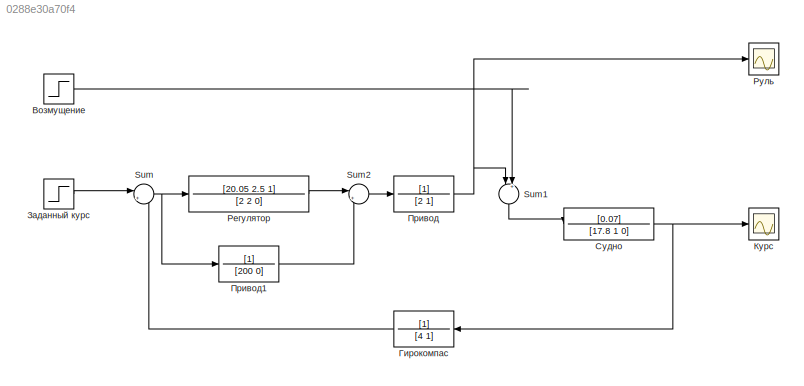
MODEL slx_0288e30a70f4
KIND model
CONFIG AbsTol = auto
CONFIG EnableMultiTasking = off
CONFIG FixedStep = auto
CONFIG MaxStep = auto
CONFIG MinStep = auto
CONFIG RelTol = 1e-3
CONFIG SampleTimeConstraint = Unconstrained
CONFIG SolverName = VariableStepAuto
CONFIG StartTime = 0.0
CONFIG StopTime = 500
BLOCK [Sum] Sum
  Inputs = |+-
  Ports = [2, 1]
BLOCK [Sum] Sum1
  Inputs = |++
  NameLocation = right
  Ports = [2, 1]
BLOCK [Sum] Sum2
  Inputs = |++
  Ports = [2, 1]
BLOCK [Step] Возмущение
  After = 2
  SampleTime = 0
  Time = 0
BLOCK [TransferFcn] Гирокомпас
  Denominator = [4 1]
  NameLocation = top
BLOCK [Step] Заданный курс
  After = 10
  SampleTime = 0
  Time = 0
BLOCK [Scope] Курс
  Floating = off
  NumInputPorts = 1
  Ports = [1]
  ScopeSpecificationString = Simulink.scopes.TimeScopeBlockCfg('CurrentConfiguration', extmgr.ConfigurationSet(extmgr.Configuration('Core','General UI',true),extmgr.Configuration('Core','Source UI',true),extmgr.Configuration('Sources','WiredSimulink',true,'DataLoggingVariableName','phi','DataLogging',true,'DataLoggingSaveFormat','Array'),extmgr.Configuration('Visuals','Time Domain',true,'SerializedDisplays',{struct('MinYLimRe...<+1476ch>
BLOCK [TransferFcn] Привод
  Denominator = [2 1]
  NameLocation = top
BLOCK [TransferFcn] Привод1
  Denominator = [200 0]
  NameLocation = top
BLOCK [TransferFcn] Регулятор
  Denominator = [2 2 0]
  NameLocation = top
  Numerator = [20.05 2.5 1]
BLOCK [Scope] Руль
  Floating = off
  NumInputPorts = 1
  Ports = [1]
  ScopeSpecificationString = Simulink.scopes.TimeScopeBlockCfg('CurrentConfiguration', extmgr.ConfigurationSet(extmgr.Configuration('Core','General UI',true),extmgr.Configuration('Core','Source UI',true),extmgr.Configuration('Sources','WiredSimulink',true,'DataLogging',true,'DataLoggingVariableName','delta','DataLoggingSaveFormat','Array'),extmgr.Configuration('Visuals','Time Domain',true,'SerializedDisplays',{struct('MinYLim...<+1487ch>
BLOCK [TransferFcn] Судно
  Denominator = [17.8 1 0]
  NameLocation = top
  Numerator = [0.07]
LINE Sum1:1 -> Судно:1
LINE Sum2:1 -> Привод:1
NET Sum:1 -> Привод1:1, Регулятор:1
LINE Возмущение:1 -> Sum1:2
LINE Гирокомпас:1 -> Sum:2
LINE Заданный курс:1 -> Sum:1
LINE Привод1:1 -> Sum2:2
NET Привод:1 -> Sum1:1, Руль:1
LINE Регулятор:1 -> Sum2:1
NET Судно:1 -> Гирокомпас:1, Курс:1
note: NET lines group one-source signal fan-out (src -> all destinations, sorted); 1:1 wires keep LINE
